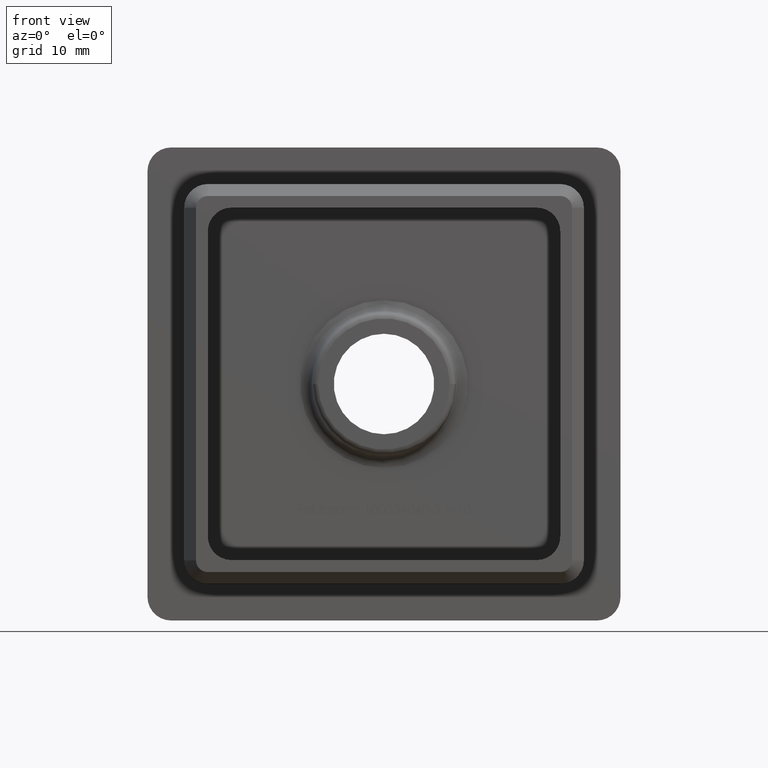
[diagram: clean part render]
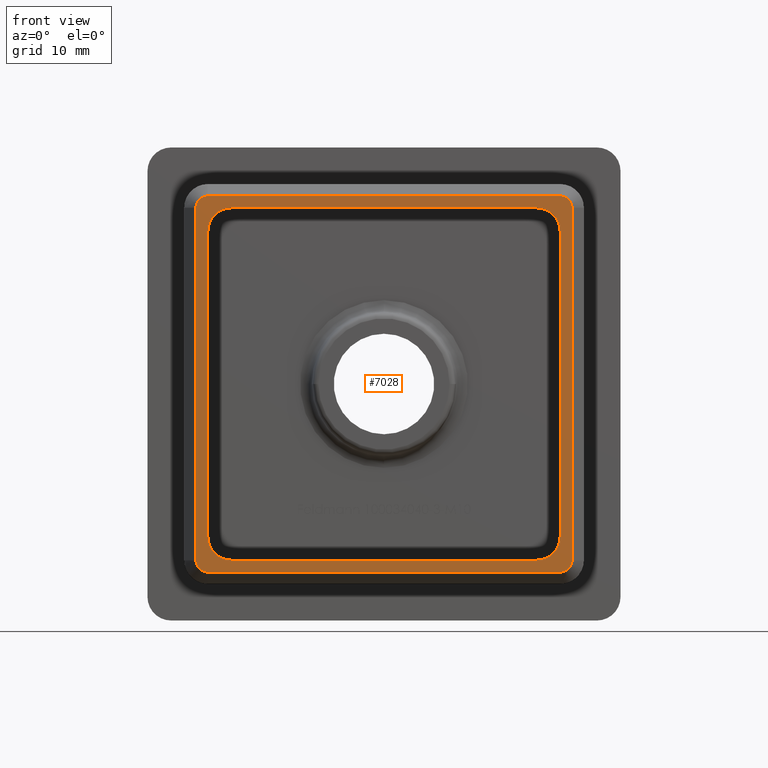
[diagram: same view with one face highlighted and labeled with its STEP entity id]
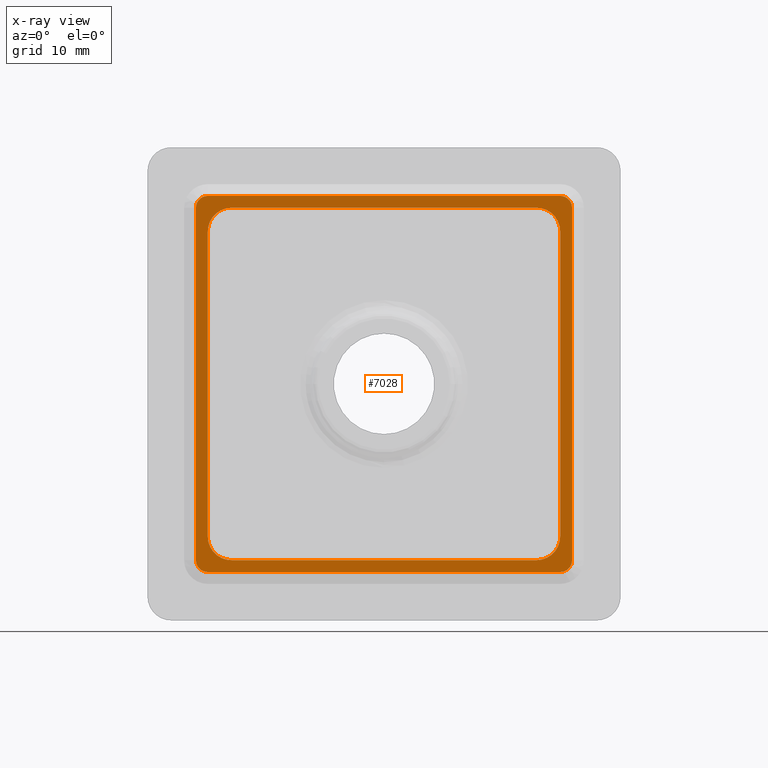
[diagram: x-ray of the same camera — body ghosted, the highlighted face saturated]
A machine part, front view. The second image highlights one B-rep face of the part: STEP entity #7028.
The next image is the same camera in x-ray: the body ghosted, the highlighted face saturated — about 0% of this face is hidden behind the body in this view.
In plain terms, the highlighted planar face has unit normal (0, -1, 0).
Its self-contained STEP definition (entity closure, byte-faithful):
#369 = CARTESIAN_POINT ( 'NONE',  ( -15.89999999999999700, -20.00000000000000000, 14.90000000000000600 ) ) ;
#471 = DIRECTION ( 'NONE',  ( 0.0000000000000000000, 0.0000000000000000000, -1.000000000000000000 ) ) ;
#614 = DIRECTION ( 'NONE',  ( -0.0000000000000000000, 1.000000000000000000, -0.0000000000000000000 ) ) ;
#624 = ORIENTED_EDGE ( 'NONE', *, *, #2016, .F. ) ;
#697 = DIRECTION ( 'NONE',  ( 0.0000000000000000000, 0.0000000000000000000, -1.000000000000000000 ) ) ;
#725 = VECTOR ( 'NONE', #8849, 1000.000000000000000 ) ;
#1047 = EDGE_CURVE ( 'NONE', #2309, #6708, #10119, .T. ) ;
#1170 = AXIS2_PLACEMENT_3D ( 'NONE', #12909, #15576, #471 ) ;
#1600 = ORIENTED_EDGE ( 'NONE', *, *, #11241, .T. ) ;
#1639 = CARTESIAN_POINT ( 'NONE',  ( -15.89999999999999700, -20.00000000000000000, -14.90000000000000400 ) ) ;
#1652 = CARTESIAN_POINT ( 'NONE',  ( 15.89999999999999700, -20.00000000000000000, 14.90000000000000600 ) ) ;
#1721 = ORIENTED_EDGE ( 'NONE', *, *, #9131, .T. ) ;
#2016 = EDGE_CURVE ( 'NONE', #9980, #4048, #6042, .T. ) ;
#2122 = AXIS2_PLACEMENT_3D ( 'NONE', #5640, #7031, #4177 ) ;
#2153 = VERTEX_POINT ( 'NONE', #11232 ) ;
#2183 = EDGE_CURVE ( 'NONE', #12194, #4048, #6463, .T. ) ;
#2190 = EDGE_LOOP ( 'NONE', ( #5704, #7408, #17477, #11270, #4181, #3734, #1721, #1600 ) ) ;
#2309 = VERTEX_POINT ( 'NONE', #5006 ) ;
#2616 = VERTEX_POINT ( 'NONE', #369 ) ;
#2736 = FACE_OUTER_BOUND ( 'NONE', #2190, .T. ) ;
#2983 = DIRECTION ( 'NONE',  ( -1.000000000000000000, 0.0000000000000000000, 0.0000000000000000000 ) ) ;
#3060 = CARTESIAN_POINT ( 'NONE',  ( 15.89999999999999700, -20.00000000000000000, -14.90000000000000400 ) ) ;
#3072 = ORIENTED_EDGE ( 'NONE', *, *, #9506, .F. ) ;
#3078 = CIRCLE ( 'NONE', #12686, 2.000000000000000000 ) ;
#3261 = CARTESIAN_POINT ( 'NONE',  ( 14.90000000000000600, -20.00000000000000000, 12.90000000000000600 ) ) ;
#3283 = LINE ( 'NONE', #12986, #8077 ) ;
#3324 = DIRECTION ( 'NONE',  ( 0.0000000000000000000, -0.0000000000000000000, -1.000000000000000000 ) ) ;
#3427 = VERTEX_POINT ( 'NONE', #5579 ) ;
#3734 = ORIENTED_EDGE ( 'NONE', *, *, #10301, .T. ) ;
#3829 = DIRECTION ( 'NONE',  ( -0.0000000000000000000, 1.000000000000000000, -0.0000000000000000000 ) ) ;
#3946 = CIRCLE ( 'NONE', #2122, 0.9999999999999922300 ) ;
#4048 = VERTEX_POINT ( 'NONE', #11425 ) ;
#4107 = DIRECTION ( 'NONE',  ( 0.0000000000000000000, 0.0000000000000000000, 1.000000000000000000 ) ) ;
#4134 = EDGE_CURVE ( 'NONE', #10736, #4220, #16837, .T. ) ;
#4177 = DIRECTION ( 'NONE',  ( 0.0000000000000000000, 0.0000000000000000000, -1.000000000000000000 ) ) ;
#4181 = ORIENTED_EDGE ( 'NONE', *, *, #12004, .T. ) ;
#4220 = VERTEX_POINT ( 'NONE', #15804 ) ;
#4472 = ORIENTED_EDGE ( 'NONE', *, *, #12274, .F. ) ;
#4596 = VERTEX_POINT ( 'NONE', #16210 ) ;
#4653 = AXIS2_PLACEMENT_3D ( 'NONE', #14503, #614, #6169 ) ;
#4746 = DIRECTION ( 'NONE',  ( 0.0000000000000000000, 0.0000000000000000000, -1.000000000000000000 ) ) ;
#5006 = CARTESIAN_POINT ( 'NONE',  ( -14.90000000000000600, -20.00000000000000000, 12.90000000000000600 ) ) ;
#5100 = LINE ( 'NONE', #17653, #13101 ) ;
#5579 = CARTESIAN_POINT ( 'NONE',  ( -14.90000000000000600, -20.00000000000000000, 15.89999999999999700 ) ) ;
#5640 = CARTESIAN_POINT ( 'NONE',  ( -14.90000000000000600, -20.00000000000000000, 14.90000000000000600 ) ) ;
#5704 = ORIENTED_EDGE ( 'NONE', *, *, #10074, .T. ) ;
#5932 = AXIS2_PLACEMENT_3D ( 'NONE', #10534, #3829, #9223 ) ;
#6042 = LINE ( 'NONE', #15797, #12529 ) ;
#6169 = DIRECTION ( 'NONE',  ( 0.0000000000000000000, 0.0000000000000000000, -1.000000000000000000 ) ) ;
#6463 = CIRCLE ( 'NONE', #4653, 2.000000000000000000 ) ;
#6708 = VERTEX_POINT ( 'NONE', #10795 ) ;
#6785 = LINE ( 'NONE', #9837, #8952 ) ;
#6983 = VERTEX_POINT ( 'NONE', #3261 ) ;
#7028 = ADVANCED_FACE ( 'NONE', ( #2736, #7282 ), #14232, .T. ) ;
#7031 = DIRECTION ( 'NONE',  ( 0.0000000000000000000, -1.000000000000000000, 0.0000000000000000000 ) ) ;
#7226 = CARTESIAN_POINT ( 'NONE',  ( -12.90000000000000600, -20.00000000000000000, -12.90000000000000400 ) ) ;
#7282 = FACE_BOUND ( 'NONE', #10286, .T. ) ;
#7408 = ORIENTED_EDGE ( 'NONE', *, *, #9656, .T. ) ;
#7635 = CARTESIAN_POINT ( 'NONE',  ( -14.90000000000000600, -20.00000000000000000, 14.90000000000000600 ) ) ;
#7670 = DIRECTION ( 'NONE',  ( 0.0000000000000000000, -1.000000000000000000, 0.0000000000000000000 ) ) ;
#7757 = CARTESIAN_POINT ( 'NONE',  ( 14.90000000000000400, -20.00000000000000000, -12.90000000000000700 ) ) ;
#8077 = VECTOR ( 'NONE', #17067, 1000.000000000000000 ) ;
#8523 = DIRECTION ( 'NONE',  ( 1.000000000000000000, 0.0000000000000000000, 0.0000000000000000000 ) ) ;
#8553 = VECTOR ( 'NONE', #15417, 1000.000000000000000 ) ;
#8708 = VERTEX_POINT ( 'NONE', #3060 ) ;
#8721 = VERTEX_POINT ( 'NONE', #10091 ) ;
#8849 = DIRECTION ( 'NONE',  ( 0.0000000000000000000, -0.0000000000000000000, -1.000000000000000000 ) ) ;
#8938 = CARTESIAN_POINT ( 'NONE',  ( -12.90000000000000600, -20.00000000000000000, -14.90000000000000400 ) ) ;
#8952 = VECTOR ( 'NONE', #8523, 1000.000000000000000 ) ;
#9046 = EDGE_CURVE ( 'NONE', #9980, #14773, #16173, .T. ) ;
#9131 = EDGE_CURVE ( 'NONE', #15070, #2153, #15278, .T. ) ;
#9223 = DIRECTION ( 'NONE',  ( 0.0000000000000000000, 0.0000000000000000000, -1.000000000000000000 ) ) ;
#9506 = EDGE_CURVE ( 'NONE', #2309, #14773, #12227, .T. ) ;
#9656 = EDGE_CURVE ( 'NONE', #8708, #10736, #5100, .T. ) ;
#9821 = VECTOR ( 'NONE', #2983, 1000.000000000000000 ) ;
#9837 = CARTESIAN_POINT ( 'NONE',  ( 14.90000000000000400, -20.00000000000000000, -15.89999999999999700 ) ) ;
#9980 = VERTEX_POINT ( 'NONE', #8938 ) ;
#10074 = EDGE_CURVE ( 'NONE', #8721, #8708, #15682, .T. ) ;
#10091 = CARTESIAN_POINT ( 'NONE',  ( 14.90000000000000600, -20.00000000000000000, -15.89999999999999700 ) ) ;
#10119 = CIRCLE ( 'NONE', #5932, 2.000000000000000000 ) ;
#10124 = CARTESIAN_POINT ( 'NONE',  ( 12.90000000000000600, -20.00000000000000000, 12.90000000000000600 ) ) ;
#10286 = EDGE_LOOP ( 'NONE', ( #624, #17244, #3072, #10397, #12622, #14663, #4472, #13462 ) ) ;
#10301 = EDGE_CURVE ( 'NONE', #2616, #15070, #14611, .T. ) ;
#10397 = ORIENTED_EDGE ( 'NONE', *, *, #1047, .T. ) ;
#10534 = CARTESIAN_POINT ( 'NONE',  ( -12.90000000000000600, -20.00000000000000000, 12.90000000000000600 ) ) ;
#10736 = VERTEX_POINT ( 'NONE', #1652 ) ;
#10769 = DIRECTION ( 'NONE',  ( 1.000000000000000000, 0.0000000000000000000, -5.821219718042976000E-017 ) ) ;
#10791 = EDGE_CURVE ( 'NONE', #4596, #6708, #10911, .T. ) ;
#10795 = CARTESIAN_POINT ( 'NONE',  ( -12.90000000000000600, -20.00000000000000000, 14.90000000000000600 ) ) ;
#10911 = LINE ( 'NONE', #14079, #8553 ) ;
#11130 = VECTOR ( 'NONE', #16819, 1000.000000000000000 ) ;
#11175 = AXIS2_PLACEMENT_3D ( 'NONE', #17381, #7670, #16093 ) ;
#11215 = DIRECTION ( 'NONE',  ( -0.0000000000000000000, 1.000000000000000000, -0.0000000000000000000 ) ) ;
#11232 = CARTESIAN_POINT ( 'NONE',  ( -14.90000000000000600, -20.00000000000000000, -15.89999999999999700 ) ) ;
#11241 = EDGE_CURVE ( 'NONE', #2153, #8721, #6785, .T. ) ;
#11270 = ORIENTED_EDGE ( 'NONE', *, *, #11439, .T. ) ;
#11425 = CARTESIAN_POINT ( 'NONE',  ( 12.90000000000000700, -20.00000000000000000, -14.90000000000000600 ) ) ;
#11439 = EDGE_CURVE ( 'NONE', #4220, #3427, #12832, .T. ) ;
#11485 = EDGE_CURVE ( 'NONE', #4596, #6983, #3078, .T. ) ;
#11613 = CARTESIAN_POINT ( 'NONE',  ( 0.0000000000000000000, -20.00000000000000000, 0.0000000000000000000 ) ) ;
#11681 = DIRECTION ( 'NONE',  ( -0.0000000000000000000, 1.000000000000000000, -0.0000000000000000000 ) ) ;
#12004 = EDGE_CURVE ( 'NONE', #3427, #2616, #3946, .T. ) ;
#12194 = VERTEX_POINT ( 'NONE', #7757 ) ;
#12227 = LINE ( 'NONE', #7635, #725 ) ;
#12274 = EDGE_CURVE ( 'NONE', #12194, #6983, #3283, .T. ) ;
#12529 = VECTOR ( 'NONE', #10769, 1000.000000000000000 ) ;
#12622 = ORIENTED_EDGE ( 'NONE', *, *, #10791, .F. ) ;
#12686 = AXIS2_PLACEMENT_3D ( 'NONE', #10124, #11681, #4746 ) ;
#12832 = LINE ( 'NONE', #14181, #9821 ) ;
#12909 = CARTESIAN_POINT ( 'NONE',  ( -14.90000000000000600, -20.00000000000000000, -14.90000000000000600 ) ) ;
#12986 = CARTESIAN_POINT ( 'NONE',  ( 14.90000000000000600, -20.00000000000000000, 14.90000000000000600 ) ) ;
#13101 = VECTOR ( 'NONE', #4107, 1000.000000000000000 ) ;
#13187 = DIRECTION ( 'NONE',  ( 0.0000000000000000000, -1.000000000000000000, 0.0000000000000000000 ) ) ;
#13462 = ORIENTED_EDGE ( 'NONE', *, *, #2183, .T. ) ;
#13832 = AXIS2_PLACEMENT_3D ( 'NONE', #11613, #14173, #3324 ) ;
#14079 = CARTESIAN_POINT ( 'NONE',  ( -14.90000000000000600, -20.00000000000000000, 14.90000000000000600 ) ) ;
#14173 = DIRECTION ( 'NONE',  ( 0.0000000000000000000, -1.000000000000000000, 0.0000000000000000000 ) ) ;
#14181 = CARTESIAN_POINT ( 'NONE',  ( -14.90000000000000600, -20.00000000000000000, 15.89999999999999700 ) ) ;
#14232 = PLANE ( 'NONE',  #13832 ) ;
#14503 = CARTESIAN_POINT ( 'NONE',  ( 12.90000000000000700, -20.00000000000000000, -12.90000000000000600 ) ) ;
#14611 = LINE ( 'NONE', #1639, #11130 ) ;
#14663 = ORIENTED_EDGE ( 'NONE', *, *, #11485, .T. ) ;
#14773 = VERTEX_POINT ( 'NONE', #16839 ) ;
#15070 = VERTEX_POINT ( 'NONE', #17993 ) ;
#15278 = CIRCLE ( 'NONE', #1170, 0.9999999999999922300 ) ;
#15417 = DIRECTION ( 'NONE',  ( -1.000000000000000000, -0.0000000000000000000, -0.0000000000000000000 ) ) ;
#15457 = DIRECTION ( 'NONE',  ( 0.0000000000000000000, 0.0000000000000000000, -1.000000000000000000 ) ) ;
#15576 = DIRECTION ( 'NONE',  ( 0.0000000000000000000, -1.000000000000000000, 0.0000000000000000000 ) ) ;
#15682 = CIRCLE ( 'NONE', #11175, 0.9999999999999940000 ) ;
#15797 = CARTESIAN_POINT ( 'NONE',  ( -14.90000000000000600, -20.00000000000000000, -14.90000000000000400 ) ) ;
#15801 = AXIS2_PLACEMENT_3D ( 'NONE', #7226, #11215, #15457 ) ;
#15804 = CARTESIAN_POINT ( 'NONE',  ( 14.90000000000000400, -20.00000000000000000, 15.89999999999999700 ) ) ;
#16057 = CARTESIAN_POINT ( 'NONE',  ( 14.90000000000000400, -20.00000000000000000, 14.90000000000000600 ) ) ;
#16093 = DIRECTION ( 'NONE',  ( 0.0000000000000000000, 0.0000000000000000000, -1.000000000000000000 ) ) ;
#16173 = CIRCLE ( 'NONE', #15801, 2.000000000000000000 ) ;
#16210 = CARTESIAN_POINT ( 'NONE',  ( 12.90000000000000700, -20.00000000000000000, 14.90000000000000600 ) ) ;
#16819 = DIRECTION ( 'NONE',  ( 0.0000000000000000000, 0.0000000000000000000, -1.000000000000000000 ) ) ;
#16837 = CIRCLE ( 'NONE', #17876, 0.9999999999999922300 ) ;
#16839 = CARTESIAN_POINT ( 'NONE',  ( -14.90000000000000600, -20.00000000000000000, -12.90000000000000400 ) ) ;
#17067 = DIRECTION ( 'NONE',  ( 5.821219718042974700E-017, -0.0000000000000000000, 1.000000000000000000 ) ) ;
#17244 = ORIENTED_EDGE ( 'NONE', *, *, #9046, .T. ) ;
#17381 = CARTESIAN_POINT ( 'NONE',  ( 14.90000000000000600, -20.00000000000000000, -14.90000000000000400 ) ) ;
#17477 = ORIENTED_EDGE ( 'NONE', *, *, #4134, .T. ) ;
#17653 = CARTESIAN_POINT ( 'NONE',  ( 15.89999999999999700, -20.00000000000000000, 14.90000000000000600 ) ) ;
#17876 = AXIS2_PLACEMENT_3D ( 'NONE', #16057, #13187, #697 ) ;
#17993 = CARTESIAN_POINT ( 'NONE',  ( -15.89999999999999700, -20.00000000000000000, -14.90000000000000600 ) ) ;